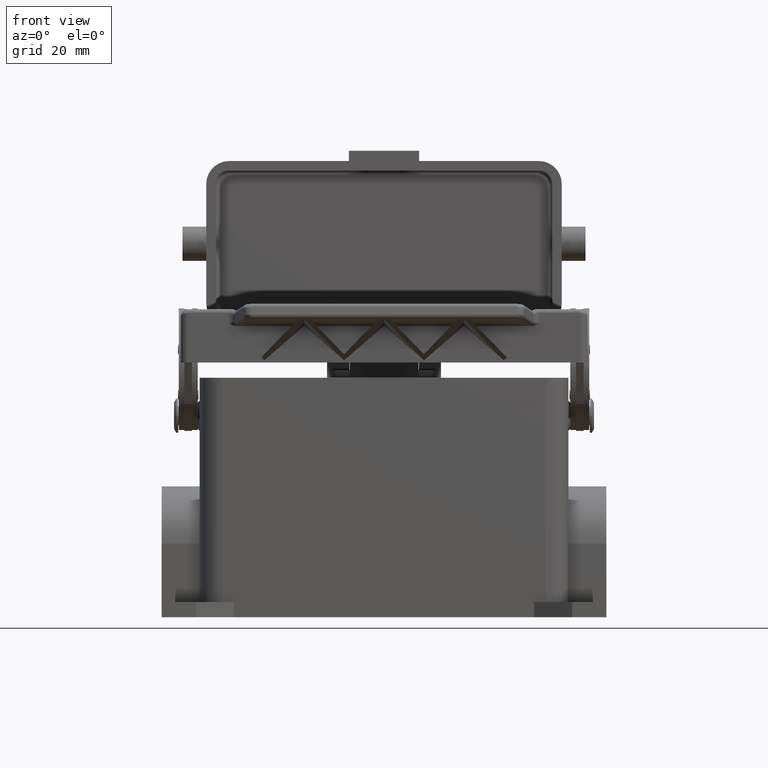
[diagram: clean part render]
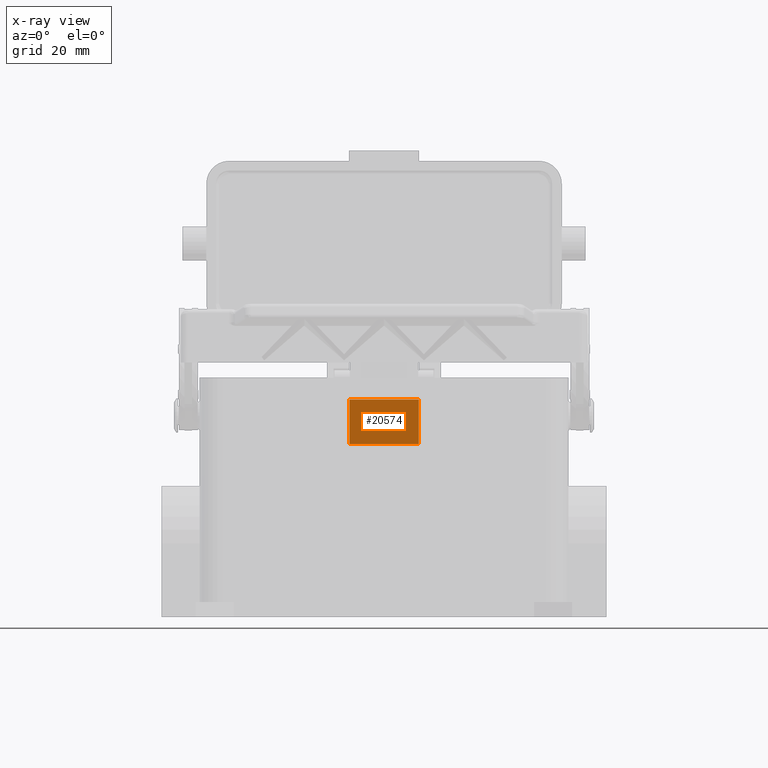
[diagram: x-ray — body ghosted, one internal face saturated and labeled with its STEP entity id]
A machine part, front view, then the same camera in x-ray: the body is ghosted and one INTERNAL B-rep face — a face not visible from any outside direction — is saturated and labeled: STEP entity #20574.
In plain terms, the highlighted planar face has unit normal (0, -0.9858, -0.1678).
Its self-contained STEP definition (entity closure, byte-faithful):
#20151=CARTESIAN_POINT('',(9.150000000000000,30.249999999999989,23.250000000000011));
#20152=VERTEX_POINT('',#20151);
#20159=CARTESIAN_POINT('',(-9.150000000000000,30.249999999999989,23.250000000000011));
#20160=VERTEX_POINT('',#20159);
#20161=CARTESIAN_POINT('',(9.150000000000000,30.249999999999989,23.250000000000011));
#20162=DIRECTION('',(-1.0,0.0,0.0));
#20163=VECTOR('',#20162,18.300000000000001);
#20164=LINE('',#20161,#20163);
#20165=EDGE_CURVE('',#20152,#20160,#20164,.T.);
#20528=CARTESIAN_POINT('',(0.0,30.249999999999989,23.250000000000011));
#20529=DIRECTION('',(0.0,-0.985821169784127,-0.167799348048362));
#20530=DIRECTION('',(0.0,0.167799348048362,-0.985821169784127));
#20531=AXIS2_PLACEMENT_3D('',#20528,#20529,#20530);
#20532=PLANE('',#20531);
#20533=CARTESIAN_POINT('',(-9.150000000000000,32.249999999999986,11.500000000000011));
#20534=VERTEX_POINT('',#20533);
#20535=CARTESIAN_POINT('',(-9.150000000000000,30.249999999999989,23.250000000000011));
#20536=DIRECTION('',(0.0,0.167799348048362,-0.985821169784127));
#20537=VECTOR('',#20536,11.918997441060217);
#20538=LINE('',#20535,#20537);
#20539=EDGE_CURVE('',#20160,#20534,#20538,.T.);
#20540=ORIENTED_EDGE('',*,*,#20539,.F.);
#20541=ORIENTED_EDGE('',*,*,#20165,.F.);
#20542=CARTESIAN_POINT('',(9.150000000000000,32.249999999999986,11.500000000000011));
#20543=VERTEX_POINT('',#20542);
#20544=CARTESIAN_POINT('',(9.150000000000000,32.249999999999986,11.500000000000011));
#20545=DIRECTION('',(0.0,-0.167799348048362,0.985821169784127));
#20546=VECTOR('',#20545,11.918997441060217);
#20547=LINE('',#20544,#20546);
#20548=EDGE_CURVE('',#20543,#20152,#20547,.T.);
#20549=ORIENTED_EDGE('',*,*,#20548,.F.);
#20550=CARTESIAN_POINT('',(8.500000000000000,32.249999999999993,11.499999999999966));
#20551=VERTEX_POINT('',#20550);
#20552=CARTESIAN_POINT('',(9.150000000000000,32.249999999999986,11.500000000000011));
#20553=DIRECTION('',(-1.0,0.0,0.0));
#20554=VECTOR('',#20553,0.650000000000000);
#20555=LINE('',#20552,#20554);
#20556=EDGE_CURVE('',#20543,#20551,#20555,.T.);
#20557=ORIENTED_EDGE('',*,*,#20556,.T.);
#20558=CARTESIAN_POINT('',(-8.500000000000000,32.249999999999986,11.500000000000011));
#20559=VERTEX_POINT('',#20558);
#20560=CARTESIAN_POINT('',(8.500000000000000,32.249999999999993,11.499999999999966));
#20561=DIRECTION('',(-1.0,0.0,0.0));
#20562=VECTOR('',#20561,17.0);
#20563=LINE('',#20560,#20562);
#20564=EDGE_CURVE('',#20551,#20559,#20563,.T.);
#20565=ORIENTED_EDGE('',*,*,#20564,.T.);
#20566=CARTESIAN_POINT('',(-8.500000000000000,32.249999999999986,11.500000000000011));
#20567=DIRECTION('',(-1.0,0.0,0.0));
#20568=VECTOR('',#20567,0.650000000000000);
#20569=LINE('',#20566,#20568);
#20570=EDGE_CURVE('',#20559,#20534,#20569,.T.);
#20571=ORIENTED_EDGE('',*,*,#20570,.T.);
#20572=EDGE_LOOP('',(#20540,#20541,#20549,#20557,#20565,#20571));
#20573=FACE_OUTER_BOUND('',#20572,.T.);
#20574=ADVANCED_FACE('',(#20573),#20532,.F.);